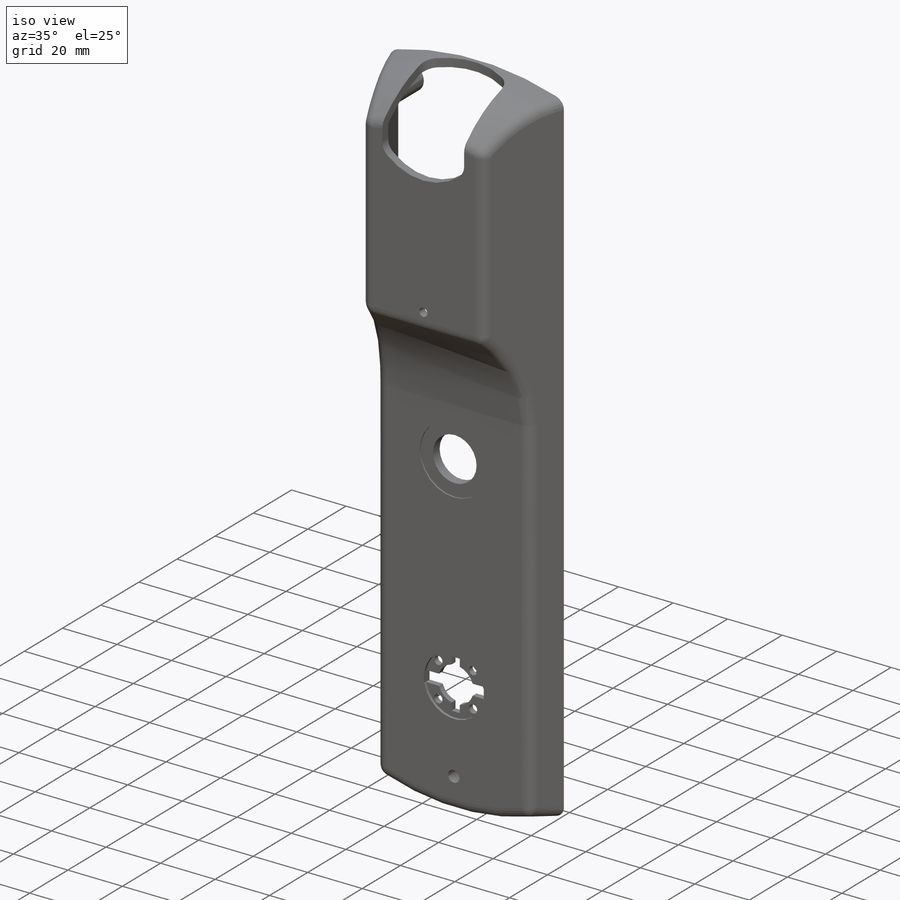
[diagram: iso view]
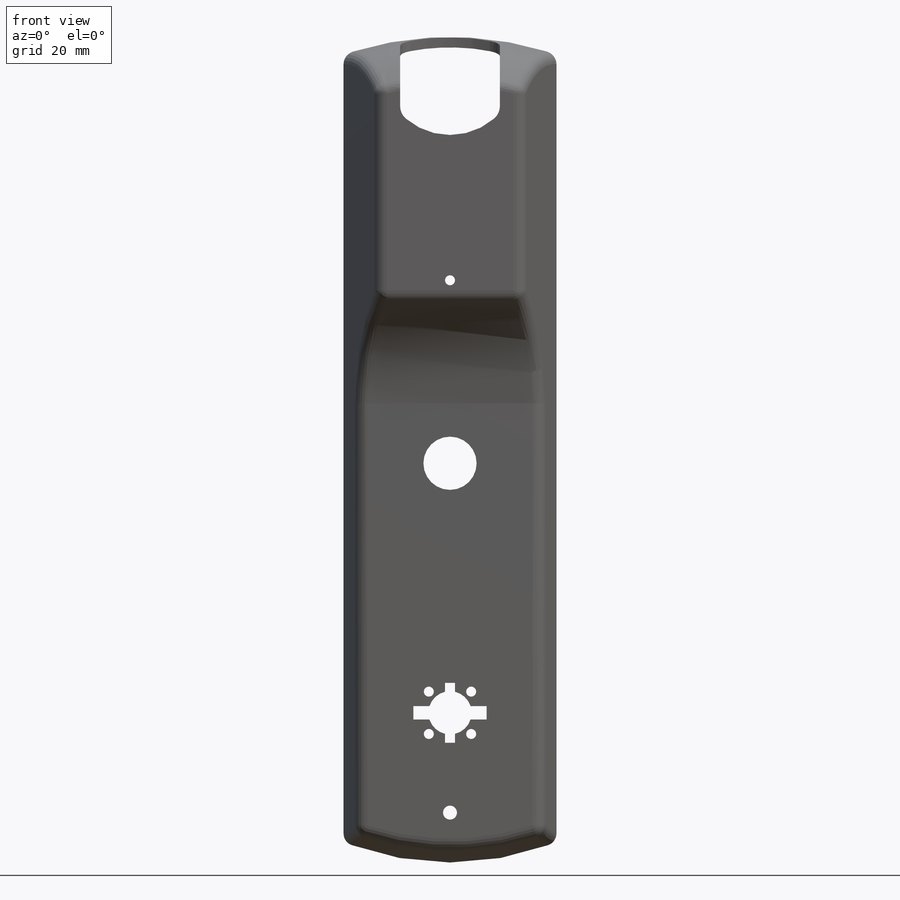
[diagram: front view]
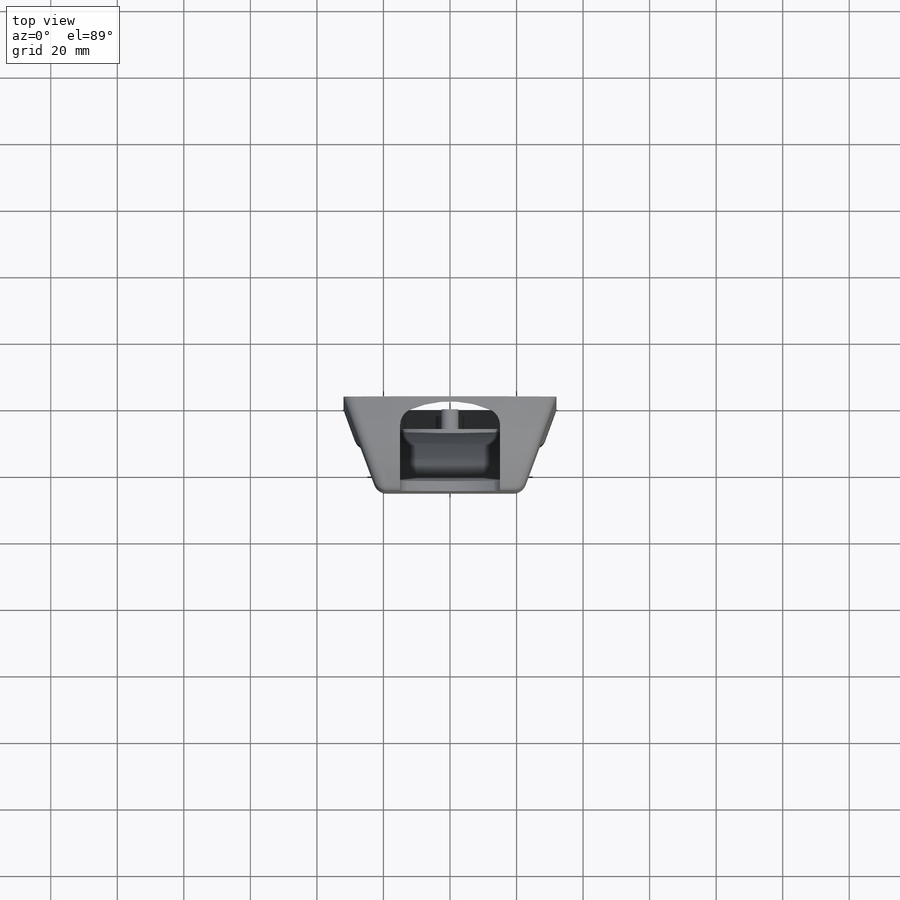
[diagram: top view]
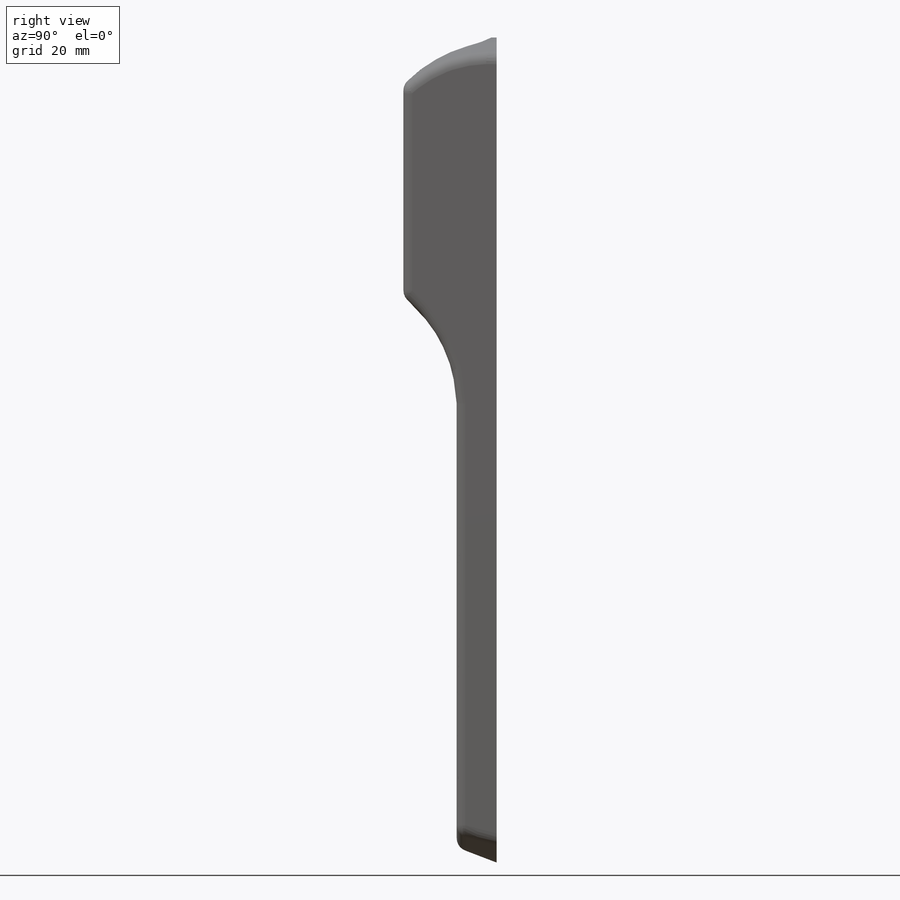
[diagram: right view]
SOLIDWORKS PART (.sldprt)
format: sldprt  version: not decoded by parser v0  size: 4,512,256 bytes
history: native  units: mm
features: sketch x40, extrude x12, plane x9, cut_extrude x9, fillet x6, hole x6, thread x6, shell x5, pattern_linear x3, mirror x2, material x1, sweep x1, pattern_circular x1 + 1 further entry (+11 scaffold rows collapsed)
feature tree (113):
  scaffold x11  (default folders/planes/origin — collapsed)
  material  "Alliage 7079"
  "Corps de surface"
  plane  "Face"
  plane  "Dessus"
  plane  "Droite"
  sketch  "Esquisse1"  dims[c1.D1=~59.970735mm c1.D3=~30.45438mm c1.D4=86.0mm c1.D5=86.0mm c2.D1=120.0mm c2.D2=64.0mm c2.D3=235.0mm]
  extrude  "Base-Extrusion"  Depth=12mm
  sketch  "Esquisse2"  dims[D1=50.0mm]
  extrude  "Boss.-Extru.1"  Depth=28mm
  sketch  "Esquisse30"  dims[c1.D3=~33.435592mm c1.D4=~32.29713mm c1.D1=22.0mm c1.D2=~15.406575mm c2.D3=~3.300837mm c2.D1=22.0mm c2.D2=15.41mm c3.D3=3.0mm c3.D2=14.0mm]
  sketch  "Esquisse31"  dims[D1=172.0mm]
  sweep  "Balayage1"
  fillet  "Congé12"  Radius=40mm
  shell  "Coque1"  Thickness=3mm
  plane  "Plan3"  Offset=7mm
  sketch  "Esquisse7"  dims[c1.D1=8.5mm c1.D2=5.2mm c1.D4=26.0mm c1.D5=21.0mm c2.D4=5.2mm c2.D3=9.0mm c2.D2=45.0mm c3.D3=142.0mm c3.D4=105.0mm c3.D5=117.0mm]
  plane  "Plan1"  Offset=8mm
  extrude  "Extrusion1"  [1 undecoded]
  sketch  "Esquisse35"  dims[c1.D1=3.0mm c1.D2=~9.506017mm c1.D3=~1.403462mm c2.D1=3.0mm]
  sketch  "Esquisse36"
  shell  "Nervure1"  Thickness=3mm
  sketch  "Esquisse37"
  shell  "Nervure3"  Thickness=3mm
  sketch  "Esquisse38"
  shell  "Nervure4"  Thickness=3mm
  sketch  "Esquisse39"
  shell  "Nervure5"  Thickness=3mm
  fillet  "Congé13"  Radius=4mm
  sketch  "Esquisse8"  dims[D1=13.0mm D2=75.0mm]
  cut_extrude  "Enlèv. mat.-Extru.1"  [1 undecoded]
  sketch  "Esquisse9"  dims[D1=22.0mm]
  cut_extrude  "Enlèv. mat.-Extru.2"  Depth=1mm
  sketch  "Esquisse10"  dims[c1.D1=3.0mm c1.D2=9.0mm c1.D3=~16.419983mm c2.D3=45.0deg]
  cut_extrude  "Enlèv. mat.-Extru.3"  [1 undecoded]
  pattern_circular  "Répétition circulaire1"  Count=4 Angle=360deg
  sketch  "Esquisse15"  dims[D1=36.0mm D2=36.0mm D3=45.0mm D4=22.5mm]
  extrude  "Extrusion2"  Depth=2mm
  sketch  "Esquisse13"  dims[D1=16.0mm]
  cut_extrude  "Enlèv. mat.-Extru.4"  [1 undecoded]
  sketch  "Esquisse14"  dims[D1=25.0mm]
  cut_extrude  "Enlèv. mat.-Extru.5"  Depth=0.5mm
  sketch  "Esquisse16"  dims[D1=5.0mm D2=16.5mm]
  extrude  "Extrusion3"  Depth=6mm
  sketch  "Esquisse17"  dims[D3=5.0mm D1=55.0mm D2=18.5mm]
  extrude  "Extrusion4"  Depth=6mm
  sketch  "Esquisse40"  dims[c1.D2=6.0mm c1.D3=6.0mm c1.D1=18.5mm c2.D3=33.0mm]
  extrude  "Extrusion6"  Depth=5mm
  pattern_linear  "Répétition linéaire3"  Count1=2 Count2=1 Spacing1=37mm Spacing2=50mm
  hole  "Trou taraudé M31"  Diameter=2mm Depth=7mm
  sketch  "Esquisse19"
  sketch  "Esquisse18"  dims[hole-wizard template sketch: 46 standard entries collapsed; hole parameters kept: c15.Diamètre du trou pour taraudage=2.0mm c15.Profondeur du trou pour taraudage=7.0mm c15.D3=~14.816244mm c15.Angle de pointe=118.0deg]
  thread  "Filetage de perçage7"  Diameter=6mm  [1 undecoded]
  pattern_linear  "Répétition linéaire2"  Count1=2 Count2=2 Spacing1=37mm Spacing2=33mm
  hole  "Trou taraudé M52"  Diameter=4mm Depth=10mm
  sketch  "Esquisse22"
  sketch  "Esquisse21"  dims[hole-wizard template sketch: 46 standard entries collapsed; hole parameters kept: c15.Diamètre du trou pour taraudage=4.0mm c15.Profondeur du trou pour taraudage=10.0mm c15.D3=~14.816244mm c15.Angle de pointe=118.0deg]
  thread  "Filetage de perçage5"  Diameter=10mm  [1 undecoded]
  hole  "Trou taraudé M53"  Diameter=4mm Depth=10mm
  sketch  "Esquisse24"
  sketch  "Esquisse23"  dims[hole-wizard template sketch: 46 standard entries collapsed; hole parameters kept: c15.Diamètre du trou pour taraudage=4.0mm c15.Profondeur du trou pour taraudage=10.0mm c15.D3=~14.816244mm c15.Angle de pointe=118.0deg]
  thread  "Filetage de perçage6"  Diameter=10mm  [1 undecoded]
  hole  "Trou taraudé M51"  Diameter=4.2mm Depth=14mm
  sketch  "Esquisse26"  dims[D1=105.0mm]
  sketch  "Esquisse25"  dims[hole-wizard template sketch: 50 standard entries collapsed; hole parameters above]
  thread  "Filetage de perçage8"  Diameter=10mm  [1 undecoded]
  sketch  "Esquisse29"  dims[D1=3.0mm D2=55.0mm]
  cut_extrude  "Enlèv. mat.-Extru.8"  [1 undecoded]
  sketch  "Esquisse33"  dims[c1.D2=20.33mm c1.D1=30.0mm c1.D3=~11.505862mm c2.D1=19.5mm c2.D3=30.0mm c2.D4=40.0mm c2.D5=119.0mm]
  cut_extrude  "Enlèv. mat.-Extru.9"  Depth=10mm
  plane  "Plan2"  Offset=130mm
  sketch  "Esquisse34"  dims[c1.D3=30.125mm c1.D1=5.5mm c1.D2=30.0mm c2.D3=15.0mm c2.D1=5.5mm c3.D3=15.0mm c3.D4=~35.14998mm]
  cut_extrude  "Enlèv. mat.-Extru.10"  Depth=15mm
  fillet  "Congé14"  Radius=5mm
  sketch  "Esquisse41"  dims[D1=22.0mm D2=4.0mm D3=3.0mm D4=3.0mm D5=9.0mm D6=9.0mm]
  cut_extrude  "Enlèv. mat.-Extru.11"  [1 undecoded]
  plane  "Plan4"  Offset=23mm
  plane  "Plan5"  Offset=1mm
  sketch  "Esquisse42"  dims[D1=5.0mm D2=20.0mm D3=23.0mm D4=5.0mm D5=6.0mm]
  extrude  "Extrusion7"  Depth=8mm
  sketch  "Esquisse50"  dims[D1=5.0mm D2=7.0mm D3=17.5mm]
  extrude  "Extrusion11"  [1 undecoded]
  mirror  "Symétrie1"
  plane  "Plan6"  Offset=23mm
  sketch  "Esquisse53"
  extrude  "Extrusion12"  [1 undecoded]
  sketch  "Esquisse43"  dims[c1.D2=2.5mm c1.D3=6.0mm c1.D1=23.0mm c2.D2=80.0mm c2.D4=7.0mm c3.D2=80.0mm c3.D4=5.5mm]
  extrude  "Extrusion9"  Depth=5mm
  mirror  "Symétrie2"
  fillet  "Congé16"  Radius=5mm
  fillet  "Congé17"  Radius=5mm
  hole  "Trou taraudé M32"  Diameter=2.5mm Depth=7mm
  sketch  "Esquisse45"
  sketch  "Esquisse44"  dims[hole-wizard template sketch: 47 standard entries collapsed; hole parameters kept: c15.Profondeur du trou pour taraudage=7.0mm c15.D3=~14.816244mm c15.Angle de pointe=118.0deg]
  thread  "Filetage de perçage9"  Diameter=6mm  [1 undecoded]
  pattern_linear  "Répétition linéaire6"  Count1=2 Count2=2 Spacing1=46mm Spacing2=80mm
  fillet  "Congé18"  Radius=2mm
  sketch  "Esquisse46"  dims[c1.D1=5.0mm c1.D3=4.25mm c1.D2=16.0mm c2.D3=12.0mm]
  extrude  "Extrusion10"  Depth=7mm
  hole  "Trou taraudé M33"  Diameter=2.5mm Depth=7mm
  sketch  "Esquisse48"
  sketch  "Esquisse47"  dims[hole-wizard template sketch: 47 standard entries collapsed; hole parameters kept: c15.Profondeur du trou pour taraudage=7.0mm c15.D3=~14.816244mm c15.Angle de pointe=118.0deg]
  thread  "Filetage de perçage10"  Diameter=6mm  [1 undecoded]
decode coverage: 70 of 91 modeling features carry decoded parameters; 1 rows unclassified (native names shown)
note: ~ marks probable driven/reference dimensions
note: 14 parameter values undecoded
summary: no parameter record found for 8 features; Diameter pulled from absorbed wizard sketch
note: suppression state not decoded; provenance and decode notes live in map.json
